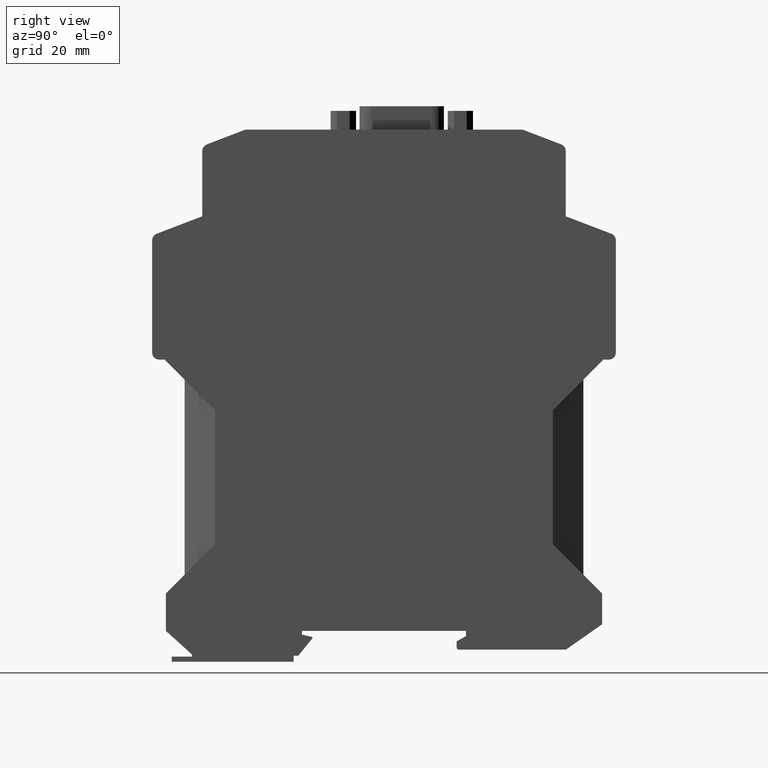
[diagram: clean part render]
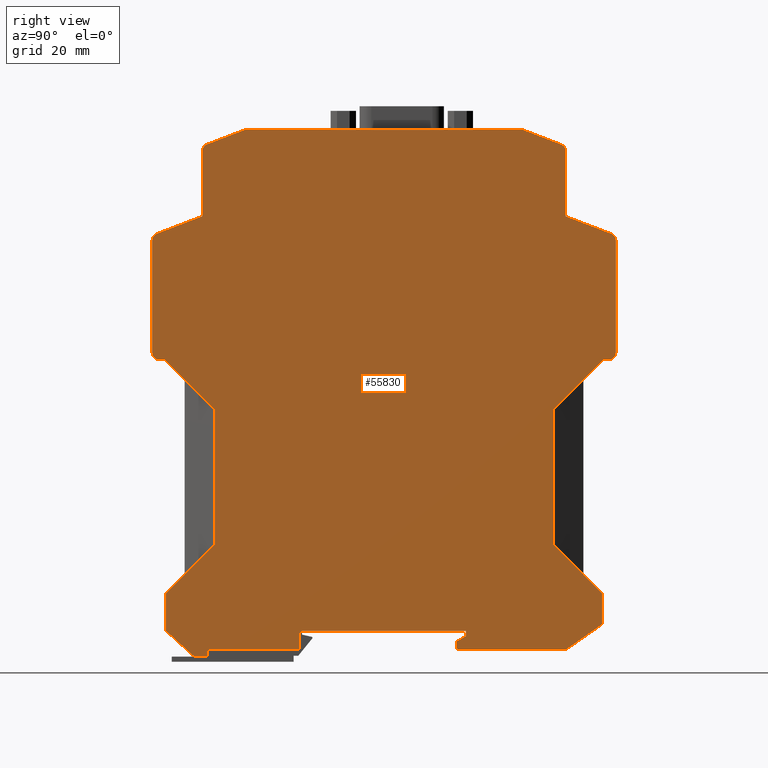
[diagram: same view with one face highlighted and labeled with its STEP entity id]
A machine part, right view. The second image highlights one B-rep face of the part: STEP entity #55830.
In plain terms, the highlighted planar face has unit normal (1, 0, 0).
Its self-contained STEP definition (entity closure, byte-faithful):
#3300=CARTESIAN_POINT('',(36.0500000000929,18.4999999999992,22.6));
#3310=VERTEX_POINT('',#3300);
#3340=CARTESIAN_POINT('',(36.050000000093,-7.99999999993772,22.6));
#3350=DIRECTION('',(0.,1.,0.));
#3360=VECTOR('',#3350,1.);
#3370=LINE('',#3340,#3360);
#3380=CARTESIAN_POINT('',(36.0500000000929,47.1000000000013,22.6));
#3390=VERTEX_POINT('',#3380);
#3400=EDGE_CURVE('',#3310,#3390,#3370,.T.);
#3750=CARTESIAN_POINT('',(49.4999999999665,83.3684175876573,22.6));
#3760=VERTEX_POINT('',#3750);
#4120=CARTESIAN_POINT('',(49.5000000000006,59.4000000000015,22.6));
#4130=VERTEX_POINT('',#4120);
#4160=CARTESIAN_POINT('',(49.4999999999431,-7.99999999993772,22.6));
#4170=DIRECTION('',(0.,-1.,-0.));
#4180=VECTOR('',#4170,1.);
#4190=LINE('',#4160,#4180);
#4200=EDGE_CURVE('',#3760,#4130,#4190,.T.);
#6370=CARTESIAN_POINT('',(48.5367137884849,84.7691096698835,22.6));
#6380=VERTEX_POINT('',#6370);
#6430=CARTESIAN_POINT('',(47.9999999999665,83.3684175876561,22.6));
#6440=DIRECTION('',(0.,0.,-1.));
#6450=DIRECTION('',(-1.,0.,0.));
#6460=AXIS2_PLACEMENT_3D('',#6430,#6440,#6450);
#6470=CIRCLE('',#6460,1.49999999999999);
#6480=EDGE_CURVE('',#6380,#3760,#6470,.T.);
#6690=CARTESIAN_POINT('',(38.7999999999999,88.5000000000611,22.6));
#6700=VERTEX_POINT('',#6690);
#6750=CARTESIAN_POINT('',(-1.39048559884107E-11,103.367289719734,22.6));
#6760=DIRECTION('',(0.933794721484838,-0.357809192345659,0.));
#6770=VECTOR('',#6760,1.);
#6780=LINE('',#6750,#6770);
#6790=EDGE_CURVE('',#6700,#6380,#6780,.T.);
#7230=CARTESIAN_POINT('',(38.7999999999999,-7.99999999993772,22.6));
#7240=DIRECTION('',(0.,-1.,-0.));
#7250=VECTOR('',#7240,1.);
#7260=LINE('',#7230,#7250);
#7270=CARTESIAN_POINT('',(38.8000000000142,102.437529439802,22.6));
#7280=VERTEX_POINT('',#7270);
#7290=EDGE_CURVE('',#7280,#6700,#7260,.T.);
#7600=CARTESIAN_POINT('',(37.8375519243449,103.837900079568,22.6));
#7610=VERTEX_POINT('',#7600);
#7640=CARTESIAN_POINT('',(-1.39048559884107E-11,118.362375437131,22.6));
#7650=DIRECTION('',(0.933580426497062,-0.358367949545665,0.));
#7660=VECTOR('',#7650,1.);
#7670=LINE('',#7640,#7660);
#7680=CARTESIAN_POINT('',(29.6000000000152,107.000000000059,22.6));
#7690=VERTEX_POINT('',#7680);
#7700=EDGE_CURVE('',#7690,#7610,#7670,.T.);
#7960=CARTESIAN_POINT('',(37.3000000000142,102.437529439817,22.6));
#7970=DIRECTION('',(0.,0.,-1.));
#7980=DIRECTION('',(-1.,0.,0.));
#7990=AXIS2_PLACEMENT_3D('',#7960,#7970,#7980);
#8000=CIRCLE('',#7990,1.49999999999999);
#8010=EDGE_CURVE('',#7610,#7280,#8000,.T.);
#32440=CARTESIAN_POINT('',(48.0000000000927,57.9000000000015,22.6));
#32450=VERTEX_POINT('',#32440);
#32480=CARTESIAN_POINT('',(48.0000000000925,59.4000000000015,22.6));
#32490=DIRECTION('',(0.,0.,-1.));
#32500=DIRECTION('',(-1.,0.,0.));
#32510=AXIS2_PLACEMENT_3D('',#32480,#32490,#32500);
#32520=CIRCLE('',#32510,1.5);
#32530=EDGE_CURVE('',#4130,#32450,#32520,.T.);
#32760=CARTESIAN_POINT('',(46.8500000000932,57.9000000000014,22.6));
#32770=VERTEX_POINT('',#32760);
#32800=CARTESIAN_POINT('',(-1.39048559884107E-11,57.8999999999968,22.6))
;
#32810=DIRECTION('',(-1.,-9.89E-14,0.));
#32820=VECTOR('',#32810,1.);
#32830=LINE('',#32800,#32820);
#32840=EDGE_CURVE('',#32450,#32770,#32830,.T.);
#33180=CARTESIAN_POINT('',(-1.39048559884107E-11,11.0499999998948,22.6))
;
#33190=DIRECTION('',(-0.707106781186551,-0.707106781186544,
-3.10815944759361E-17));
#33200=VECTOR('',#33190,1.);
#33210=LINE('',#33180,#33200);
#33220=EDGE_CURVE('',#32770,#3390,#33210,.T.);
#33980=CARTESIAN_POINT('',(15.5000000000943,-2.25459663117312,22.6));
#33990=VERTEX_POINT('',#33980);
#34070=CARTESIAN_POINT('',(17.5000000000944,-1.09989609279393,22.6));
#34080=VERTEX_POINT('',#34070);
#34110=CARTESIAN_POINT('',(9.37743429023537E-11,-11.2035258036117,22.6))
;
#34120=DIRECTION('',(0.86602540378446,0.499999999999962,0.));
#34130=VECTOR('',#34120,1.);
#34140=LINE('',#34110,#34130);
#34150=EDGE_CURVE('',#33990,#34080,#34140,.T.);
#34360=CARTESIAN_POINT('',(15.5000000000945,-3.49999999999909,22.6));
#34370=VERTEX_POINT('',#34360);
#34420=CARTESIAN_POINT('',(15.5000000000952,-8.00000000000008,22.6));
#34430=DIRECTION('',(1.54E-13,-1.,0.));
#34440=VECTOR('',#34430,1.);
#34450=LINE('',#34420,#34440);
#34460=EDGE_CURVE('',#33990,#34370,#34450,.T.);
#34670=CARTESIAN_POINT('',(46.5500000000976,1.40000000001026,22.6));
#34680=VERTEX_POINT('',#34670);
#34760=CARTESIAN_POINT('',(38.8380007636762,-3.99999999999967,22.6));
#34770=VERTEX_POINT('',#34760);
#34800=CARTESIAN_POINT('',(5.22714261198125E-13,-31.1946609037204,22.6))
;
#34810=DIRECTION('',(0.819152044288986,0.573576436351054,0.));
#34820=VECTOR('',#34810,1.);
#34830=LINE('',#34800,#34820);
#34840=EDGE_CURVE('',#34770,#34680,#34830,.T.);
#35080=CARTESIAN_POINT('',(46.5500000000976,7.99999999999636,22.6));
#35090=VERTEX_POINT('',#35080);
#35120=CARTESIAN_POINT('',(-1.39048559884107E-11,54.5500000000993,22.6))
;
#35130=DIRECTION('',(0.707106781186613,-0.707106781186482,
3.10815944759437E-17));
#35140=VECTOR('',#35130,1.);
#35150=LINE('',#35120,#35140);
#35160=EDGE_CURVE('',#3310,#35090,#35150,.T.);
#35370=CARTESIAN_POINT('',(46.5500000000976,-8.00000000000012,22.6));
#35380=DIRECTION('',(0.,-1.,-0.));
#35390=VECTOR('',#35380,1.);
#35400=LINE('',#35370,#35390);
#35410=EDGE_CURVE('',#35090,#34680,#35400,.T.);
#35640=CARTESIAN_POINT('',(16.0000000000944,-3.99999999999914,22.6));
#35650=VERTEX_POINT('',#35640);
#35680=CARTESIAN_POINT('',(9.37743429023537E-11,-3.99999999999914,22.6))
;
#35690=DIRECTION('',(-1.,0.,0.));
#35700=VECTOR('',#35690,1.);
#35710=LINE('',#35680,#35700);
#35720=EDGE_CURVE('',#34770,#35650,#35710,.T.);
#35920=CARTESIAN_POINT('',(16.0000000000943,-3.49999999999909,22.6));
#35930=DIRECTION('',(0.,0.,-1.));
#35940=DIRECTION('',(-1.,0.,0.));
#35950=AXIS2_PLACEMENT_3D('',#35920,#35930,#35940);
#35960=CIRCLE('',#35950,0.499999999999808);
#35970=EDGE_CURVE('',#35650,#34370,#35960,.T.);
#36200=CARTESIAN_POINT('',(17.5000000000944,7.86926079854311E-13,22.6));
#36210=VERTEX_POINT('',#36200);
#36240=CARTESIAN_POINT('',(17.5000000000944,-8.00000000000008,22.6));
#36250=DIRECTION('',(-4.E-16,1.,0.));
#36260=VECTOR('',#36250,1.);
#36270=LINE('',#36240,#36260);
#36280=EDGE_CURVE('',#34080,#36210,#36270,.T.);
#38160=CARTESIAN_POINT('',(-46.5499999999138,3.62199159553711E-12,22.6))
;
#38170=VERTEX_POINT('',#38160);
#38200=CARTESIAN_POINT('',(-1.39048559884107E-11,-42.3181818180724,22.6)
);
#38210=DIRECTION('',(-0.739940073396061,0.672672793996183,
-7.34680468597451E-18));
#38220=VECTOR('',#38210,1.);
#38230=LINE('',#38200,#38220);
#38240=CARTESIAN_POINT('',(-40.4999999999323,-5.49999999997762,22.6));
#38250=VERTEX_POINT('',#38240);
#38260=EDGE_CURVE('',#38250,#38170,#38230,.T.);
#38480=CARTESIAN_POINT('',(-46.5499999999168,8.00000000008406,22.6));
#38490=VERTEX_POINT('',#38480);
#38520=CARTESIAN_POINT('',(-46.5499999999168,-8.00000000000008,22.6));
#38530=DIRECTION('',(0.,1.,0.));
#38540=VECTOR('',#38530,1.);
#38550=LINE('',#38520,#38540);
#38560=EDGE_CURVE('',#38170,#38490,#38550,.T.);
#38930=CARTESIAN_POINT('',(-36.0499999999998,18.4999999999992,22.6));
#38940=VERTEX_POINT('',#38930);
#38970=CARTESIAN_POINT('',(-1.39048559884107E-11,54.5499999999784,22.6))
;
#38980=DIRECTION('',(0.707106781186613,0.707106781186482,
3.10815944759437E-17));
#38990=VECTOR('',#38980,1.);
#39000=LINE('',#38970,#38990);
#39010=EDGE_CURVE('',#38490,#38940,#39000,.T.);
#42000=CARTESIAN_POINT('',(-46.85,57.9000000000014,22.6));
#42010=VERTEX_POINT('',#42000);
#42040=CARTESIAN_POINT('',(-1.39048559884107E-11,11.0500000000157,22.6))
;
#42050=DIRECTION('',(-0.707106781186551,0.707106781186544,
-3.10815944759361E-17));
#42060=VECTOR('',#42050,1.);
#42070=LINE('',#42040,#42060);
#42080=CARTESIAN_POINT('',(-36.0499999999998,47.1000000000012,22.6));
#42090=VERTEX_POINT('',#42080);
#42100=EDGE_CURVE('',#42090,#42010,#42070,.T.);
#42350=CARTESIAN_POINT('',(-36.0499999999999,-7.99999999993772,22.6));
#42360=DIRECTION('',(0.,1.,0.));
#42370=VECTOR('',#42360,1.);
#42380=LINE('',#42350,#42370);
#42390=EDGE_CURVE('',#38940,#42090,#42380,.T.);
#42570=CARTESIAN_POINT('',(-1.39048559884107E-11,7.86926079854311E-13,
22.6));
#42580=DIRECTION('',(-1.,0.,0.));
#42590=VECTOR('',#42580,1.);
#42600=LINE('',#42570,#42590);
#42610=CARTESIAN_POINT('',(-17.9999999999069,-1.81721304670646E-12,22.6)
);
#42620=VERTEX_POINT('',#42610);
#42630=EDGE_CURVE('',#36210,#42620,#42600,.T.);
#42970=CARTESIAN_POINT('',(-17.9999999999071,-7.99999999993772,22.6));
#42980=DIRECTION('',(-2.13E-14,-1.,5.47032087242383E-31));
#42990=VECTOR('',#42980,1.);
#43000=LINE('',#42970,#42990);
#43010=CARTESIAN_POINT('',(-17.999999999907,-4.00000000000092,22.6));
#43020=VERTEX_POINT('',#43010);
#43030=EDGE_CURVE('',#42620,#43020,#43000,.T.);
#43280=CARTESIAN_POINT('',(-1.39048559884107E-11,-5.49999999997762,22.6)
);
#43290=DIRECTION('',(-1.,0.,0.));
#43300=VECTOR('',#43290,1.);
#43310=LINE('',#43280,#43300);
#43320=CARTESIAN_POINT('',(-37.7999999999074,-5.49999999997762,22.6));
#43330=VERTEX_POINT('',#43320);
#43340=EDGE_CURVE('',#43330,#38250,#43310,.T.);
#43590=CARTESIAN_POINT('',(-37.7999999999074,-7.99999999993772,22.6));
#43600=DIRECTION('',(0.,-1.,-0.));
#43610=VECTOR('',#43600,1.);
#43620=LINE('',#43590,#43610);
#43630=CARTESIAN_POINT('',(-37.7999999999074,-3.99999999999904,22.6));
#43640=VERTEX_POINT('',#43630);
#43650=EDGE_CURVE('',#43640,#43330,#43620,.T.);
#43900=CARTESIAN_POINT('',(-1.39048559884107E-11,-4.00000000000264,22.6)
);
#43910=DIRECTION('',(-1.,9.53855596613063E-14,0.));
#43920=VECTOR('',#43910,1.);
#43930=LINE('',#43900,#43920);
#43940=EDGE_CURVE('',#43020,#43640,#43930,.T.);
#54750=CARTESIAN_POINT('',(-29.3499999999535,40.6500000000024,22.6));
#54760=DIRECTION('',(0.,0.,1.));
#54770=DIRECTION('',(1.,0.,0.));
#54780=AXIS2_PLACEMENT_3D('',#54750,#54760,#54770);
#54790=PLANE('',#54780);
#54800=ORIENTED_EDGE('',*,*,#43940,.F.);
#54810=ORIENTED_EDGE('',*,*,#43650,.F.);
#54820=ORIENTED_EDGE('',*,*,#43340,.F.);
#54830=ORIENTED_EDGE('',*,*,#38260,.F.);
#54840=ORIENTED_EDGE('',*,*,#38560,.F.);
#54850=ORIENTED_EDGE('',*,*,#39010,.F.);
#54860=ORIENTED_EDGE('',*,*,#42390,.F.);
#54870=ORIENTED_EDGE('',*,*,#42100,.F.);
#54880=CARTESIAN_POINT('',(-1.39048559884107E-11,57.9000000000015,22.6))
;
#54890=DIRECTION('',(-1.,0.,0.));
#54900=VECTOR('',#54890,1.);
#54910=LINE('',#54880,#54900);
#54920=CARTESIAN_POINT('',(-47.9999999999994,57.9000000000015,22.6));
#54930=VERTEX_POINT('',#54920);
#54940=EDGE_CURVE('',#42010,#54930,#54910,.T.);
#54950=ORIENTED_EDGE('',*,*,#54940,.F.);
#54960=CARTESIAN_POINT('',(-47.9999999999994,59.4000000000015,22.6));
#54970=DIRECTION('',(0.,0.,-1.));
#54980=DIRECTION('',(-1.,0.,0.));
#54990=AXIS2_PLACEMENT_3D('',#54960,#54970,#54980);
#55000=CIRCLE('',#54990,1.5);
#55010=CARTESIAN_POINT('',(-49.4999999999994,59.4000000000015,22.6));
#55020=VERTEX_POINT('',#55010);
#55030=EDGE_CURVE('',#54930,#55020,#55000,.T.);
#55040=ORIENTED_EDGE('',*,*,#55030,.F.);
#55050=CARTESIAN_POINT('',(-49.4999999999075,-8.00000000000008,22.6));
#55060=DIRECTION('',(0.,1.,0.));
#55070=VECTOR('',#55060,1.);
#55080=LINE('',#55050,#55070);
#55090=CARTESIAN_POINT('',(-49.4999999999339,83.3684175876573,22.6));
#55100=VERTEX_POINT('',#55090);
#55110=EDGE_CURVE('',#55020,#55100,#55080,.T.);
#55120=ORIENTED_EDGE('',*,*,#55110,.F.);
#55130=CARTESIAN_POINT('',(-47.999999999988,83.3684175876566,22.6));
#55140=DIRECTION('',(0.,0.,1.));
#55150=DIRECTION('',(1.,0.,0.));
#55160=AXIS2_PLACEMENT_3D('',#55130,#55140,#55150);
#55170=CIRCLE('',#55160,1.5);
#55180=CARTESIAN_POINT('',(-48.5367137885062,84.7691096698839,22.6));
#55190=VERTEX_POINT('',#55180);
#55200=EDGE_CURVE('',#55190,#55100,#55170,.T.);
#55210=ORIENTED_EDGE('',*,*,#55200,.T.);
#55220=CARTESIAN_POINT('',(-1.39048559884107E-11,103.367289719729,22.6))
;
#55230=DIRECTION('',(-0.933794721484838,-0.357809192345659,0.));
#55240=VECTOR('',#55230,1.);
#55250=LINE('',#55220,#55240);
#55260=CARTESIAN_POINT('',(-38.8000000000143,88.5000000000611,22.6));
#55270=VERTEX_POINT('',#55260);
#55280=EDGE_CURVE('',#55270,#55190,#55250,.T.);
#55290=ORIENTED_EDGE('',*,*,#55280,.T.);
#55300=CARTESIAN_POINT('',(-38.8000000000142,-7.99999999993772,22.6));
#55310=DIRECTION('',(0.,-1.,-0.));
#55320=VECTOR('',#55310,1.);
#55330=LINE('',#55300,#55320);
#55340=CARTESIAN_POINT('',(-38.8000000000142,102.437529439802,22.6));
#55350=VERTEX_POINT('',#55340);
#55360=EDGE_CURVE('',#55350,#55270,#55330,.T.);
#55370=ORIENTED_EDGE('',*,*,#55360,.T.);
#55380=CARTESIAN_POINT('',(-37.3000000000285,102.437529439817,22.6));
#55390=DIRECTION('',(0.,0.,-1.));
#55400=DIRECTION('',(-1.,0.,0.));
#55410=AXIS2_PLACEMENT_3D('',#55380,#55390,#55400);
#55420=CIRCLE('',#55410,1.49999999999999);
#55430=CARTESIAN_POINT('',(-37.8375519243559,103.837900079559,22.6));
#55440=VERTEX_POINT('',#55430);
#55450=EDGE_CURVE('',#55350,#55440,#55420,.T.);
#55460=ORIENTED_EDGE('',*,*,#55450,.F.);
#55470=CARTESIAN_POINT('',(-1.39048559884107E-11,118.362375437126,22.6))
;
#55480=DIRECTION('',(0.933580426497062,0.358367949545665,0.));
#55490=VECTOR('',#55480,1.);
#55500=LINE('',#55470,#55490);
#55510=CARTESIAN_POINT('',(-29.6000000000285,107.000000000059,22.6));
#55520=VERTEX_POINT('',#55510);
#55530=EDGE_CURVE('',#55440,#55520,#55500,.T.);
#55540=ORIENTED_EDGE('',*,*,#55530,.F.);
#55550=CARTESIAN_POINT('',(-1.39048559884107E-11,107.000000000059,22.6))
;
#55560=DIRECTION('',(1.,0.,0.));
#55570=VECTOR('',#55560,1.);
#55580=LINE('',#55550,#55570);
#55590=EDGE_CURVE('',#55520,#7690,#55580,.T.);
#55600=ORIENTED_EDGE('',*,*,#55590,.F.);
#55610=ORIENTED_EDGE('',*,*,#7700,.F.);
#55620=ORIENTED_EDGE('',*,*,#8010,.F.);
#55630=ORIENTED_EDGE('',*,*,#7290,.F.);
#55640=ORIENTED_EDGE('',*,*,#6790,.F.);
#55650=ORIENTED_EDGE('',*,*,#6480,.F.);
#55660=ORIENTED_EDGE('',*,*,#4200,.F.);
#55670=ORIENTED_EDGE('',*,*,#32530,.F.);
#55680=ORIENTED_EDGE('',*,*,#32840,.F.);
#55690=ORIENTED_EDGE('',*,*,#33220,.F.);
#55700=ORIENTED_EDGE('',*,*,#3400,.T.);
#55710=ORIENTED_EDGE('',*,*,#35160,.F.);
#55720=ORIENTED_EDGE('',*,*,#35410,.F.);
#55730=ORIENTED_EDGE('',*,*,#34840,.T.);
#55740=ORIENTED_EDGE('',*,*,#35720,.F.);
#55750=ORIENTED_EDGE('',*,*,#35970,.F.);
#55760=ORIENTED_EDGE('',*,*,#34460,.T.);
#55770=ORIENTED_EDGE('',*,*,#34150,.F.);
#55780=ORIENTED_EDGE('',*,*,#36280,.F.);
#55790=ORIENTED_EDGE('',*,*,#42630,.F.);
#55800=ORIENTED_EDGE('',*,*,#43030,.F.);
#55810=EDGE_LOOP('',(#55800,#55790,#55780,#55770,#55760,#55750,#55740,
#55730,#55720,#55710,#55700,#55690,#55680,#55670,#55660,#55650,#55640,
#55630,#55620,#55610,#55600,#55540,#55460,#55370,#55290,#55210,#55120,
#55040,#54950,#54870,#54860,#54850,#54840,#54830,#54820,#54810,#54800));
#55820=FACE_OUTER_BOUND('',#55810,.T.);
#55830=ADVANCED_FACE('',(#55820),#54790,.T.);